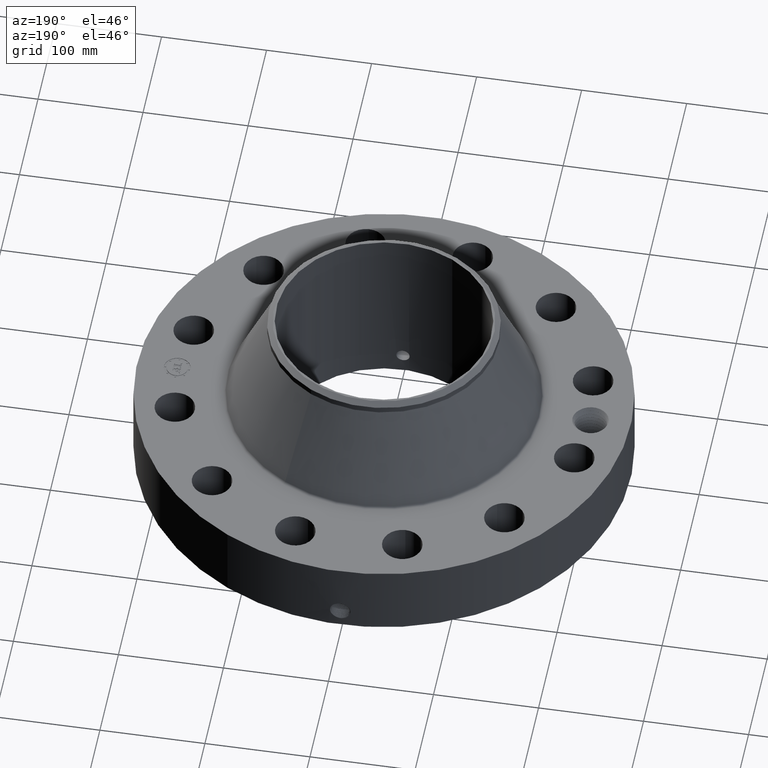
[diagram: clean part render]
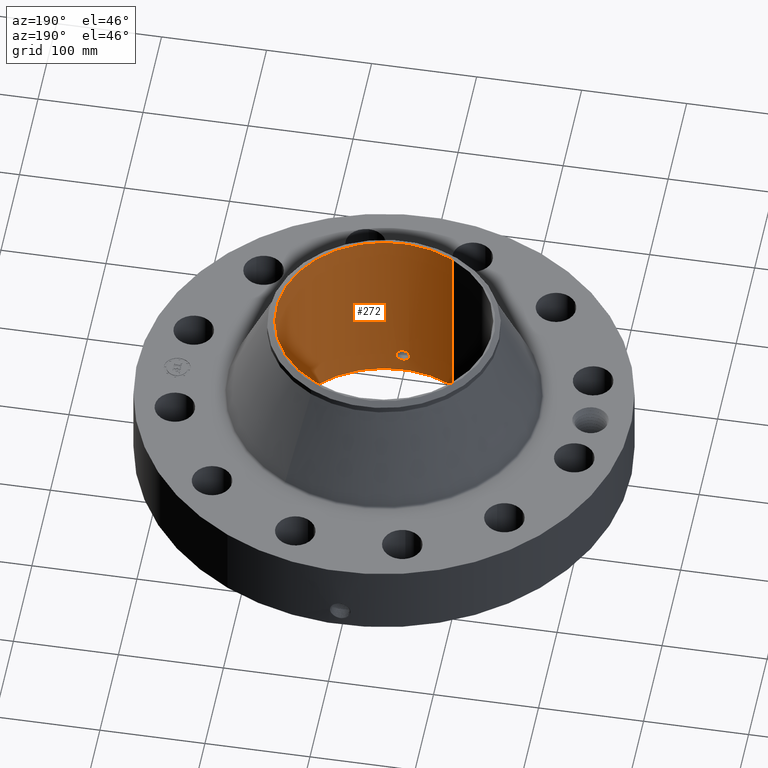
[diagram: same view with one face highlighted and labeled with its STEP entity id]
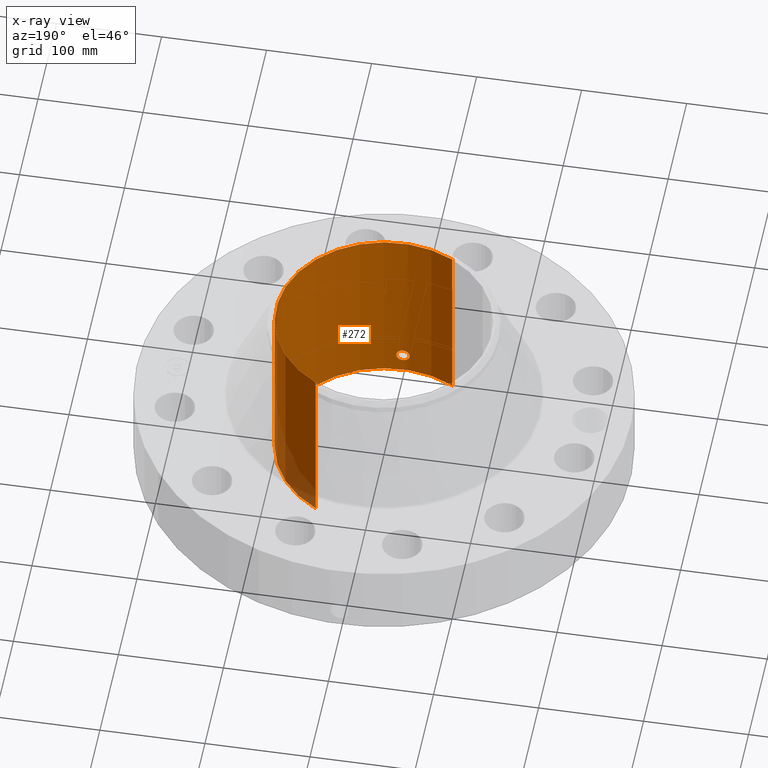
[diagram: x-ray of the same camera — body ghosted, the highlighted face saturated]
A machine part, auxiliary view. The second image highlights one B-rep face of the part: STEP entity #272.
The next image is the same camera in x-ray: the body ghosted, the highlighted face saturated — about 5% of this face is hidden behind the body in this view.
In plain terms, the highlighted cylindrical surface (partial cylindrical patch) has radius 102.502 mm, axis along (0, 0, -1).
Its self-contained STEP definition (entity closure, byte-faithful):
#232=AXIS2_PLACEMENT_3D('Cylinder Axis2P3D',#229,#230,#231) ;
#236=AXIS2_PLACEMENT_3D('Circle Axis2P3D',#234,#235,$) ;
#252=AXIS2_PLACEMENT_3D('Circle Axis2P3D',#250,#251,$) ;
#81=CARTESIAN_POINT('Control Point',(0.219395640473,-4.02953171015,0.630143615351)) ;
#82=CARTESIAN_POINT('Control Point',(0.206921897863,-4.03021086717,0.607310582659)) ;
#83=CARTESIAN_POINT('Control Point',(0.191479211514,-4.03100326265,0.586102859568)) ;
#84=CARTESIAN_POINT('Control Point',(0.173347691585,-4.03184762908,0.567032549723)) ;
#85=CARTESIAN_POINT('Control Point',(0.11215416303,-4.03428922644,0.517563292136)) ;
#86=CARTESIAN_POINT('Control Point',(0.0350122785003,-4.03587550788,0.494033613499)) ;
#87=CARTESIAN_POINT('Control Point',(-0.0195281441143,-4.03599449956,0.492387761714)) ;
#88=CARTESIAN_POINT('Control Point',(-0.124103811438,-4.03424989558,0.517513451588)) ;
#89=CARTESIAN_POINT('Control Point',(-0.203143111577,-4.03063623511,0.590387464208)) ;
#90=CARTESIAN_POINT('Control Point',(-0.232130157701,-4.02885574964,0.636581048161)) ;
#91=CARTESIAN_POINT('Control Point',(-0.255826959737,-4.02738808649,0.714745428035)) ;
#92=CARTESIAN_POINT('Control Point',(-0.248306737979,-4.02785344589,0.794154809118)) ;
#93=CARTESIAN_POINT('Control Point',(-0.242072400228,-4.02824497891,0.820755665868)) ;
#94=CARTESIAN_POINT('Control Point',(-0.232330199664,-4.02882746308,0.84617983287)) ;
#95=CARTESIAN_POINT('Control Point',(-0.219395640473,-4.02953171015,0.869856384655)) ;
#96=CARTESIAN_POINT('Vertex',(0.219395640473,-4.02953171015,0.630143615351)) ;
#98=CARTESIAN_POINT('Vertex',(-0.219395640473,-4.02953171015,0.869856384655)) ;
#206=CARTESIAN_POINT('Control Point',(-0.219395640473,-4.02953171015,0.869856384655)) ;
#207=CARTESIAN_POINT('Control Point',(-0.206921897866,-4.03021086717,0.892689417341)) ;
#208=CARTESIAN_POINT('Control Point',(-0.191479211522,-4.03100326265,0.913897140427)) ;
#209=CARTESIAN_POINT('Control Point',(-0.173347691579,-4.03184762908,0.932967450288)) ;
#210=CARTESIAN_POINT('Control Point',(-0.112154163036,-4.03428922644,0.982436707863)) ;
#211=CARTESIAN_POINT('Control Point',(-0.0350122785255,-4.03587550788,1.0059663865)) ;
#212=CARTESIAN_POINT('Control Point',(0.0195281441268,-4.03599449956,1.00761223829)) ;
#213=CARTESIAN_POINT('Control Point',(0.124103811474,-4.03424989558,0.982486548406)) ;
#214=CARTESIAN_POINT('Control Point',(0.203143111625,-4.0306362351,0.909612535755)) ;
#215=CARTESIAN_POINT('Control Point',(0.232130157677,-4.02885574965,0.863418951919)) ;
#216=CARTESIAN_POINT('Control Point',(0.255826959732,-4.02738808649,0.785254572036)) ;
#217=CARTESIAN_POINT('Control Point',(0.248306737985,-4.02785344589,0.705845190945)) ;
#218=CARTESIAN_POINT('Control Point',(0.24207240021,-4.02824497891,0.67924433409)) ;
#219=CARTESIAN_POINT('Control Point',(0.232330199652,-4.02882746308,0.653820167114)) ;
#220=CARTESIAN_POINT('Control Point',(0.219395640473,-4.02953171015,0.630143615351)) ;
#229=CARTESIAN_POINT('Axis2P3D Location',(0.,0.,3.34600000001)) ;
#234=CARTESIAN_POINT('Axis2P3D Location',(0.,0.,6.69200000003)) ;
#238=CARTESIAN_POINT('Vertex',(1.93472176104,3.54148442852,6.69200000003)) ;
#240=CARTESIAN_POINT('Vertex',(-1.93472176105,-3.54148442852,6.69200000003)) ;
#243=CARTESIAN_POINT('Line Origine',(1.93472176105,3.54148442852,3.34600000001)) ;
#247=CARTESIAN_POINT('Vertex',(1.93472176105,3.54148442852,-1.06301669129E-014)) ;
#250=CARTESIAN_POINT('Axis2P3D Location',(0.,0.,-1.1189649382E-014)) ;
#254=CARTESIAN_POINT('Vertex',(-1.93472176105,-3.54148442852,-1.06301669129E-014)) ;
#257=CARTESIAN_POINT('Line Origine',(-1.93472176105,-3.54148442852,3.34600000001)) ;
#230=DIRECTION('Axis2P3D Direction',(0.,0.,-0.0393700787402)) ;
#231=DIRECTION('Axis2P3D XDirection',(-0.0188750212049,-0.0345504945626,0.)) ;
#235=DIRECTION('Axis2P3D Direction',(0.,0.,-0.0393700787402)) ;
#244=DIRECTION('Vector Direction',(0.,0.,-0.0393700787402)) ;
#251=DIRECTION('Axis2P3D Direction',(0.,0.,-0.0393700787402)) ;
#258=DIRECTION('Vector Direction',(0.,0.,-0.0393700787402)) ;
#245=VECTOR('Line Direction',#244,0.0393700787402) ;
#259=VECTOR('Line Direction',#258,0.0393700787402) ;
#263=ORIENTED_EDGE('',*,*,#242,.F.) ;
#264=ORIENTED_EDGE('',*,*,#249,.T.) ;
#265=ORIENTED_EDGE('',*,*,#256,.T.) ;
#266=ORIENTED_EDGE('',*,*,#261,.F.) ;
#269=ORIENTED_EDGE('',*,*,#100,.F.) ;
#270=ORIENTED_EDGE('',*,*,#221,.F.) ;
#271=FACE_BOUND('',#268,.T.) ;
#272=ADVANCED_FACE('PartBody',(#267,#271),#233,.F.) ;
#80=B_SPLINE_CURVE_WITH_KNOTS('',5,(#81,#82,#83,#84,#85,#86,#87,#88,#89,#90,#91,#92,#93,#94,#95),.UNSPECIFIED.,.F.,.U.,(6,3,3,3,6),(0.,4.6745761792,14.0214890686,23.3714411466,28.2187098589),.UNSPECIFIED.) ;
#205=B_SPLINE_CURVE_WITH_KNOTS('',5,(#206,#207,#208,#209,#210,#211,#212,#213,#214,#215,#216,#217,#218,#219,#220),.UNSPECIFIED.,.F.,.U.,(6,3,3,3,6),(0.,4.67457617793,14.0214890657,23.3714411497,28.2187098575),.UNSPECIFIED.) ;
#237=CIRCLE('generated circle',#236,4.03550000002) ;
#253=CIRCLE('generated circle',#252,4.03550000002) ;
#233=CYLINDRICAL_SURFACE('generated cylinder',#232,4.03550000002) ;
#100=EDGE_CURVE('',#97,#99,#80,.T.) ;
#221=EDGE_CURVE('',#99,#97,#205,.T.) ;
#242=EDGE_CURVE('',#239,#241,#237,.T.) ;
#249=EDGE_CURVE('',#239,#248,#246,.T.) ;
#256=EDGE_CURVE('',#248,#255,#253,.T.) ;
#261=EDGE_CURVE('',#241,#255,#260,.T.) ;
#262=EDGE_LOOP('',(#263,#264,#265,#266)) ;
#268=EDGE_LOOP('',(#269,#270)) ;
#267=FACE_OUTER_BOUND('',#262,.T.) ;
#246=LINE('Line',#243,#245) ;
#260=LINE('Line',#257,#259) ;
#97=VERTEX_POINT('',#96) ;
#99=VERTEX_POINT('',#98) ;
#239=VERTEX_POINT('',#238) ;
#241=VERTEX_POINT('',#240) ;
#248=VERTEX_POINT('',#247) ;
#255=VERTEX_POINT('',#254) ;